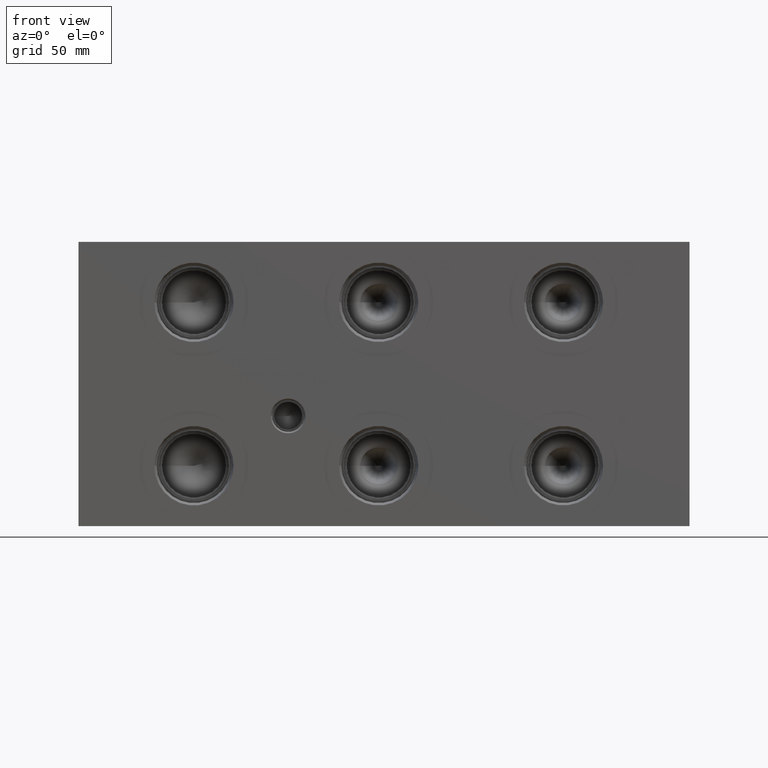
[diagram: clean part render]
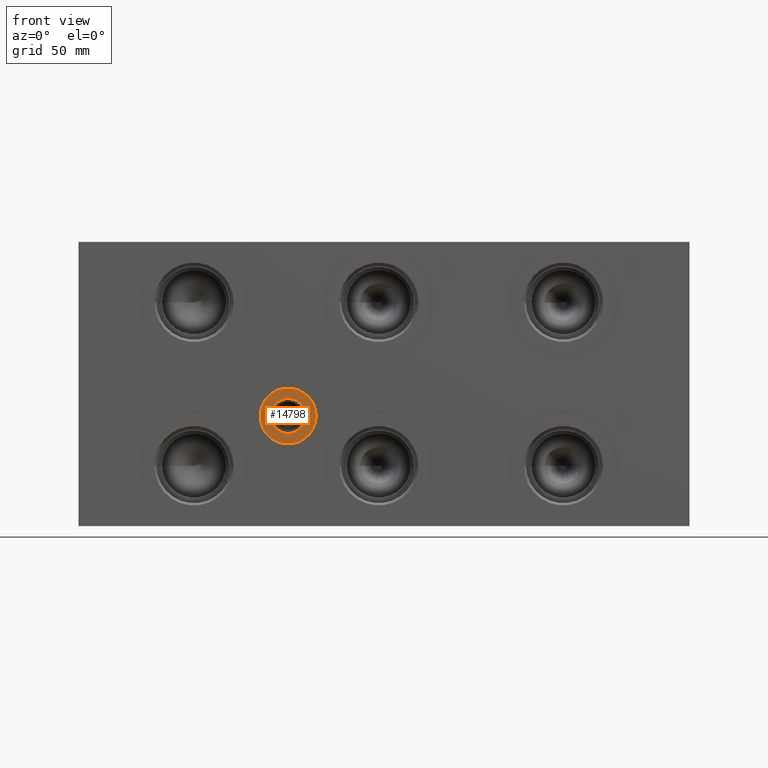
[diagram: same view with one face highlighted and labeled with its STEP entity id]
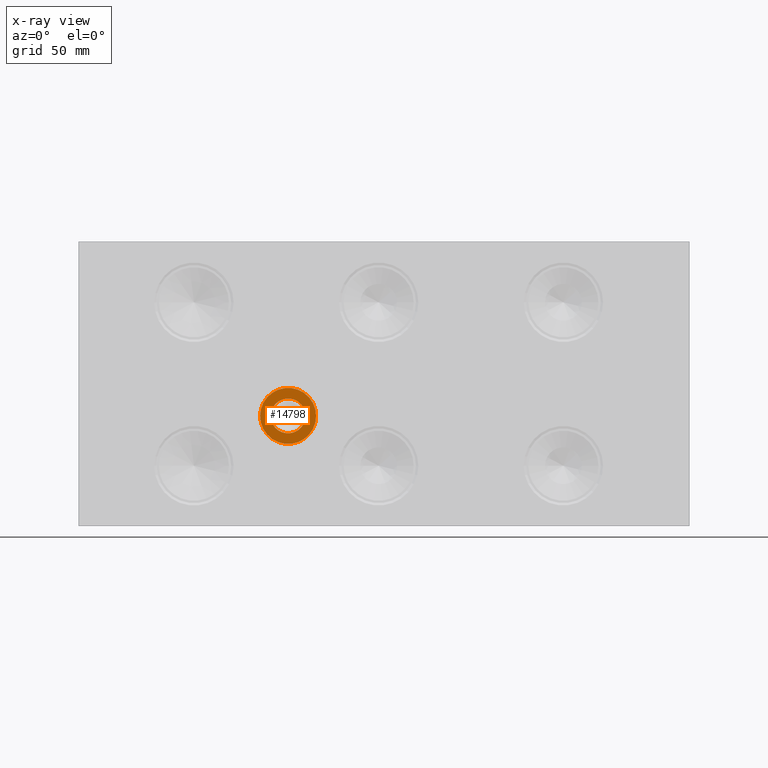
[diagram: x-ray of the same camera — body ghosted, the highlighted face saturated]
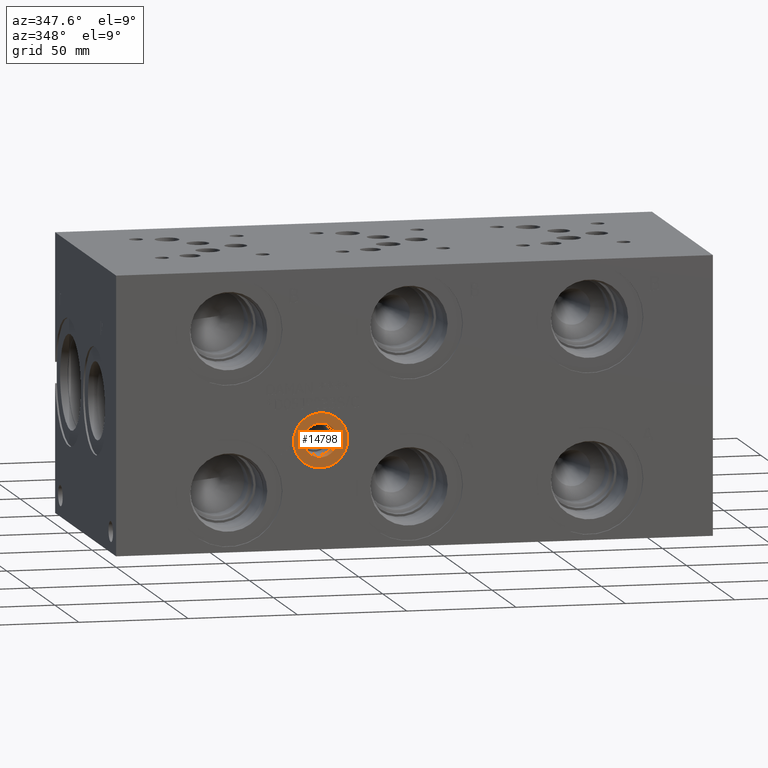
[diagram: same view with one face highlighted and labeled with its STEP entity id]
A machine part, front view. The second image highlights one B-rep face of the part: STEP entity #14798.
The next image is the same camera in x-ray: the body ghosted, the highlighted face saturated — about 0% of this face is hidden behind the body in this view.
A second angle (auxiliary view) of the same face is appended — the face is thin or edge-on in the first view.
In plain terms, the highlighted planar face has unit normal (0, 1, 0).
Its self-contained STEP definition (entity closure, byte-faithful):
#474=CIRCLE('',#15465,12.5095);
#475=CIRCLE('',#15466,12.5095);
#476=CIRCLE('',#15468,7.79780000000001);
#477=CIRCLE('',#15469,7.79780000000001);
#1277=FACE_BOUND('',#2747,.T.);
#1897=FACE_OUTER_BOUND('',#2746,.T.);
#2746=EDGE_LOOP('',(#12196,#12197));
#2747=EDGE_LOOP('',(#12198,#12199));
#6669=VERTEX_POINT('',#25017);
#6670=VERTEX_POINT('',#25019);
#6671=VERTEX_POINT('',#25023);
#6672=VERTEX_POINT('',#25024);
#8612=EDGE_CURVE('',#6669,#6670,#474,.T.);
#8613=EDGE_CURVE('',#6670,#6669,#475,.T.);
#8614=EDGE_CURVE('',#6671,#6672,#476,.T.);
#8615=EDGE_CURVE('',#6672,#6671,#477,.T.);
#12196=ORIENTED_EDGE('',*,*,#8613,.F.);
#12197=ORIENTED_EDGE('',*,*,#8612,.F.);
#12198=ORIENTED_EDGE('',*,*,#8614,.T.);
#12199=ORIENTED_EDGE('',*,*,#8615,.T.);
#13682=PLANE('',#15467);
#14798=ADVANCED_FACE('',(#1897,#1277),#13682,.F.);
#15465=AXIS2_PLACEMENT_3D('',#25020,#17993,#17994);
#15466=AXIS2_PLACEMENT_3D('',#25021,#17995,#17996);
#15467=AXIS2_PLACEMENT_3D('',#25022,#17997,#17998);
#15468=AXIS2_PLACEMENT_3D('',#25025,#17999,#18000);
#15469=AXIS2_PLACEMENT_3D('',#25026,#18001,#18002);
#17993=DIRECTION('center_axis',(0.,1.,0.));
#17994=DIRECTION('ref_axis',(1.,0.,0.));
#17995=DIRECTION('center_axis',(0.,1.,0.));
#17996=DIRECTION('ref_axis',(1.,0.,0.));
#17997=DIRECTION('center_axis',(0.,1.,0.));
#17998=DIRECTION('ref_axis',(0.,0.,1.));
#17999=DIRECTION('center_axis',(0.,1.,0.));
#18000=DIRECTION('ref_axis',(1.,0.,0.));
#18001=DIRECTION('center_axis',(0.,1.,0.));
#18002=DIRECTION('ref_axis',(1.,0.,0.));
#25017=CARTESIAN_POINT('',(81.1657,0.7874,49.2252));
#25019=CARTESIAN_POINT('',(106.1847,0.7874,49.2252));
#25020=CARTESIAN_POINT('Origin',(93.6752,0.7874,49.2252));
#25021=CARTESIAN_POINT('Origin',(93.6752,0.7874,49.2252));
#25022=CARTESIAN_POINT('Origin',(101.473,0.7874,49.2252));
#25023=CARTESIAN_POINT('',(101.473,0.7874,49.2252));
#25024=CARTESIAN_POINT('',(85.8774,0.787400000000002,49.2252));
#25025=CARTESIAN_POINT('Origin',(93.6752,0.7874,49.2252));
#25026=CARTESIAN_POINT('Origin',(93.6752,0.7874,49.2252));